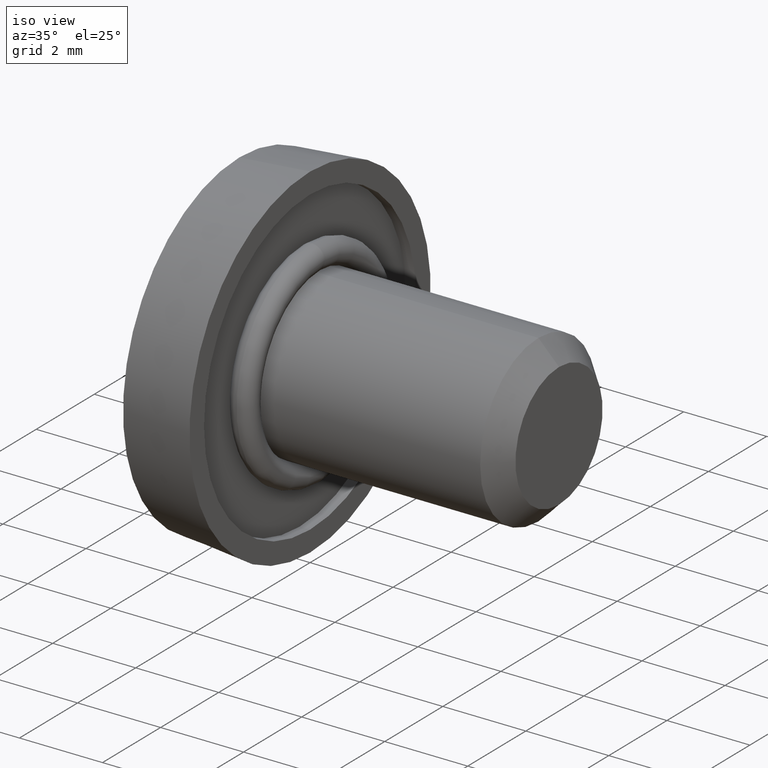
[diagram: clean part render]
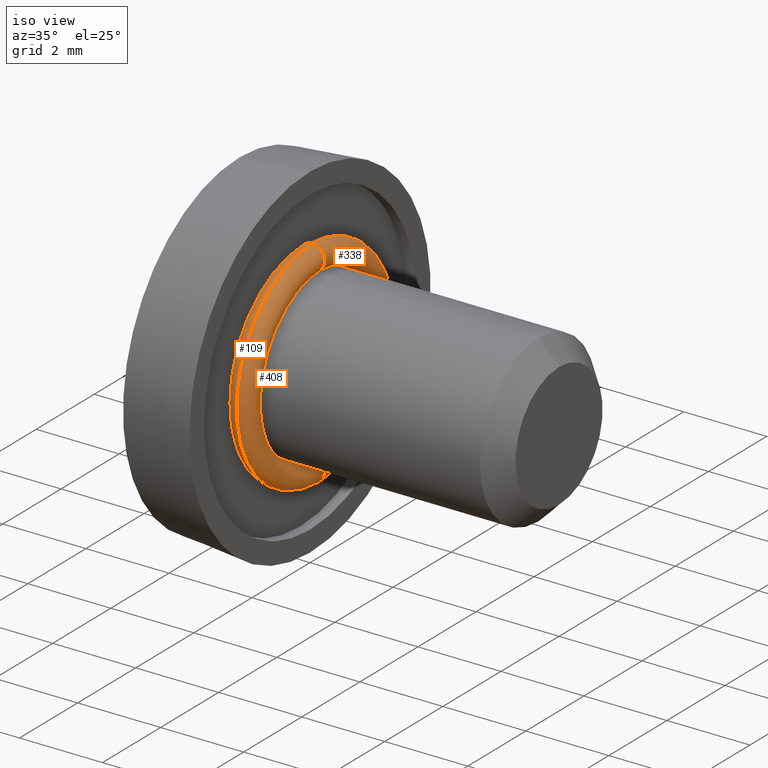
[diagram: same view with one multi-face feature highlighted, each face labeled with its STEP entity id]
A machine part, iso view. The highlighted faces form ONE feature: a constant-radius fillet chain: 3 tangent blend faces with common blend radius 0.3 mm. The faces share edges in the B-rep.
Their STEP definitions:
[1] entity #109 (Torus):
#3 = TOROIDAL_SURFACE ( 'NONE', #110, 2.299999999999999800, 0.2999999999999998800 ) ;
#40 = CARTESIAN_POINT ( 'NONE',  ( 0.04999999999999998900, 2.449293598294706400E-016, 2.000000000000000000 ) ) ;
#53 = ORIENTED_EDGE ( 'NONE', *, *, #672, .T. ) ;
#76 = DIRECTION ( 'NONE',  ( 0.0000000000000000000, 0.0000000000000000000, -1.000000000000000000 ) ) ;
#95 = VERTEX_POINT ( 'NONE', #429 ) ;
#109 = ADVANCED_FACE ( 'NONE', ( #701 ), #3, .T. ) ;
#110 = AXIS2_PLACEMENT_3D ( 'NONE', #570, #786, #76 ) ;
#134 = ORIENTED_EDGE ( 'NONE', *, *, #1192, .F. ) ;
#135 = DIRECTION ( 'NONE',  ( 0.0000000000000000000, 0.0000000000000000000, -1.000000000000000000 ) ) ;
#150 = DIRECTION ( 'NONE',  ( 1.000000000000000000, -0.0000000000000000000, -0.0000000000000000000 ) ) ;
#155 = DIRECTION ( 'NONE',  ( 0.0000000000000000000, 1.224646799147353200E-016, 1.000000000000000000 ) ) ;
#158 = CIRCLE ( 'NONE', #720, 2.600000000000000100 ) ;
#259 = CARTESIAN_POINT ( 'NONE',  ( 0.05000000000000002400, 0.0000000000000000000, 0.0000000000000000000 ) ) ;
#275 = CIRCLE ( 'NONE', #340, 2.000000000000000000 ) ;
#336 = CIRCLE ( 'NONE', #1205, 0.2999999999999999300 ) ;
#340 = AXIS2_PLACEMENT_3D ( 'NONE', #1015, #713, #135 ) ;
#385 = DIRECTION ( 'NONE',  ( 0.0000000000000000000, 1.000000000000000000, -1.224646799147353200E-016 ) ) ;
#429 = CARTESIAN_POINT ( 'NONE',  ( 0.04999999999999998900, 0.0000000000000000000, -2.000000000000000000 ) ) ;
#451 = ORIENTED_EDGE ( 'NONE', *, *, #1131, .F. ) ;
#504 = VERTEX_POINT ( 'NONE', #721 ) ;
#546 = CARTESIAN_POINT ( 'NONE',  ( 0.05000000000000002400, 0.0000000000000000000, -2.299999999999999800 ) ) ;
#570 = CARTESIAN_POINT ( 'NONE',  ( 0.05000000000000002400, 0.0000000000000000000, 0.0000000000000000000 ) ) ;
#577 = EDGE_CURVE ( 'NONE', #95, #504, #336, .T. ) ;
#631 = CARTESIAN_POINT ( 'NONE',  ( 0.05000000000000002400, 3.184081677783118200E-016, 2.600000000000000100 ) ) ;
#672 = EDGE_CURVE ( 'NONE', #840, #95, #275, .T. ) ;
#674 = DIRECTION ( 'NONE',  ( 0.0000000000000000000, 0.0000000000000000000, -1.000000000000000000 ) ) ;
#681 = CARTESIAN_POINT ( 'NONE',  ( 0.05000000000000002400, 2.816687638038912100E-016, 2.299999999999999800 ) ) ;
#701 = FACE_OUTER_BOUND ( 'NONE', #797, .T. ) ;
#713 = DIRECTION ( 'NONE',  ( 1.000000000000000000, -0.0000000000000000000, -0.0000000000000000000 ) ) ;
#720 = AXIS2_PLACEMENT_3D ( 'NONE', #259, #150, #977 ) ;
#721 = CARTESIAN_POINT ( 'NONE',  ( 0.05000000000000002400, 0.0000000000000000000, -2.600000000000000100 ) ) ;
#786 = DIRECTION ( 'NONE',  ( 1.000000000000000000, -0.0000000000000000000, -0.0000000000000000000 ) ) ;
#797 = EDGE_LOOP ( 'NONE', ( #451, #134, #53, #1195 ) ) ;
#840 = VERTEX_POINT ( 'NONE', #40 ) ;
#919 = AXIS2_PLACEMENT_3D ( 'NONE', #681, #385, #155 ) ;
#939 = DIRECTION ( 'NONE',  ( -0.0000000000000000000, -1.000000000000000000, -0.0000000000000000000 ) ) ;
#955 = VERTEX_POINT ( 'NONE', #631 ) ;
#977 = DIRECTION ( 'NONE',  ( 0.0000000000000000000, 0.0000000000000000000, -1.000000000000000000 ) ) ;
#1015 = CARTESIAN_POINT ( 'NONE',  ( 0.04999999999999998900, 0.0000000000000000000, 0.0000000000000000000 ) ) ;
#1112 = CIRCLE ( 'NONE', #919, 0.2999999999999999300 ) ;
#1131 = EDGE_CURVE ( 'NONE', #955, #504, #158, .T. ) ;
#1192 = EDGE_CURVE ( 'NONE', #840, #955, #1112, .T. ) ;
#1195 = ORIENTED_EDGE ( 'NONE', *, *, #577, .T. ) ;
#1205 = AXIS2_PLACEMENT_3D ( 'NONE', #546, #939, #674 ) ;
[2] entity #408 (Torus):
#9 = ORIENTED_EDGE ( 'NONE', *, *, #876, .T. ) ;
#40 = CARTESIAN_POINT ( 'NONE',  ( 0.04999999999999998900, 2.449293598294706400E-016, 2.000000000000000000 ) ) ;
#58 = FACE_OUTER_BOUND ( 'NONE', #213, .T. ) ;
#95 = VERTEX_POINT ( 'NONE', #429 ) ;
#133 = ORIENTED_EDGE ( 'NONE', *, *, #672, .F. ) ;
#135 = DIRECTION ( 'NONE',  ( 0.0000000000000000000, 0.0000000000000000000, -1.000000000000000000 ) ) ;
#150 = DIRECTION ( 'NONE',  ( 1.000000000000000000, -0.0000000000000000000, -0.0000000000000000000 ) ) ;
#158 = CIRCLE ( 'NONE', #720, 2.600000000000000100 ) ;
#213 = EDGE_LOOP ( 'NONE', ( #1049, #608, #9, #133 ) ) ;
#235 = CIRCLE ( 'NONE', #375, 0.2999999999999999300 ) ;
#253 = CARTESIAN_POINT ( 'NONE',  ( 0.05000000000000002400, 0.0000000000000000000, -2.299999999999999800 ) ) ;
#259 = CARTESIAN_POINT ( 'NONE',  ( 0.05000000000000002400, 0.0000000000000000000, 0.0000000000000000000 ) ) ;
#275 = CIRCLE ( 'NONE', #340, 2.000000000000000000 ) ;
#331 = CARTESIAN_POINT ( 'NONE',  ( 0.05000000000000002400, 0.0000000000000000000, 0.0000000000000000000 ) ) ;
#340 = AXIS2_PLACEMENT_3D ( 'NONE', #1015, #713, #135 ) ;
#375 = AXIS2_PLACEMENT_3D ( 'NONE', #1155, #1102, #1036 ) ;
#408 = ADVANCED_FACE ( 'NONE', ( #58 ), #792, .T. ) ;
#429 = CARTESIAN_POINT ( 'NONE',  ( 0.04999999999999998900, 0.0000000000000000000, -2.000000000000000000 ) ) ;
#445 = DIRECTION ( 'NONE',  ( 0.0000000000000000000, 0.0000000000000000000, -1.000000000000000000 ) ) ;
#504 = VERTEX_POINT ( 'NONE', #721 ) ;
#527 = DIRECTION ( 'NONE',  ( 0.0000000000000000000, 0.0000000000000000000, -1.000000000000000000 ) ) ;
#608 = ORIENTED_EDGE ( 'NONE', *, *, #1131, .T. ) ;
#631 = CARTESIAN_POINT ( 'NONE',  ( 0.05000000000000002400, 3.184081677783118200E-016, 2.600000000000000100 ) ) ;
#672 = EDGE_CURVE ( 'NONE', #840, #95, #275, .T. ) ;
#713 = DIRECTION ( 'NONE',  ( 1.000000000000000000, -0.0000000000000000000, -0.0000000000000000000 ) ) ;
#720 = AXIS2_PLACEMENT_3D ( 'NONE', #259, #150, #977 ) ;
#721 = CARTESIAN_POINT ( 'NONE',  ( 0.05000000000000002400, 0.0000000000000000000, -2.600000000000000100 ) ) ;
#724 = AXIS2_PLACEMENT_3D ( 'NONE', #331, #1087, #445 ) ;
#792 = TOROIDAL_SURFACE ( 'NONE', #724, 2.299999999999999800, 0.2999999999999998800 ) ;
#840 = VERTEX_POINT ( 'NONE', #40 ) ;
#876 = EDGE_CURVE ( 'NONE', #504, #95, #1186, .T. ) ;
#955 = VERTEX_POINT ( 'NONE', #631 ) ;
#977 = DIRECTION ( 'NONE',  ( 0.0000000000000000000, 0.0000000000000000000, -1.000000000000000000 ) ) ;
#1001 = AXIS2_PLACEMENT_3D ( 'NONE', #253, #1109, #527 ) ;
#1015 = CARTESIAN_POINT ( 'NONE',  ( 0.04999999999999998900, 0.0000000000000000000, 0.0000000000000000000 ) ) ;
#1036 = DIRECTION ( 'NONE',  ( 0.0000000000000000000, 1.224646799147353200E-016, 1.000000000000000000 ) ) ;
#1047 = EDGE_CURVE ( 'NONE', #955, #840, #235, .T. ) ;
#1049 = ORIENTED_EDGE ( 'NONE', *, *, #1047, .F. ) ;
#1087 = DIRECTION ( 'NONE',  ( 1.000000000000000000, -0.0000000000000000000, -0.0000000000000000000 ) ) ;
#1102 = DIRECTION ( 'NONE',  ( 0.0000000000000000000, 1.000000000000000000, -1.224646799147353200E-016 ) ) ;
#1109 = DIRECTION ( 'NONE',  ( -0.0000000000000000000, -1.000000000000000000, -0.0000000000000000000 ) ) ;
#1131 = EDGE_CURVE ( 'NONE', #955, #504, #158, .T. ) ;
#1155 = CARTESIAN_POINT ( 'NONE',  ( 0.05000000000000002400, 2.816687638038912100E-016, 2.299999999999999800 ) ) ;
#1186 = CIRCLE ( 'NONE', #1001, 0.2999999999999999300 ) ;
[3] entity #338 (Torus):
#40 = CARTESIAN_POINT ( 'NONE',  ( 0.04999999999999998900, 2.449293598294706400E-016, 2.000000000000000000 ) ) ;
#95 = VERTEX_POINT ( 'NONE', #429 ) ;
#105 = AXIS2_PLACEMENT_3D ( 'NONE', #1221, #464, #929 ) ;
#146 = FACE_OUTER_BOUND ( 'NONE', #729, .T. ) ;
#169 = DIRECTION ( 'NONE',  ( 1.000000000000000000, -0.0000000000000000000, -0.0000000000000000000 ) ) ;
#196 = AXIS2_PLACEMENT_3D ( 'NONE', #359, #1124, #1132 ) ;
#198 = ORIENTED_EDGE ( 'NONE', *, *, #454, .T. ) ;
#206 = CIRCLE ( 'NONE', #1041, 2.600000000000000100 ) ;
#212 = ORIENTED_EDGE ( 'NONE', *, *, #614, .F. ) ;
#235 = CIRCLE ( 'NONE', #375, 0.2999999999999999300 ) ;
#253 = CARTESIAN_POINT ( 'NONE',  ( 0.05000000000000002400, 0.0000000000000000000, -2.299999999999999800 ) ) ;
#304 = CIRCLE ( 'NONE', #105, 2.000000000000000000 ) ;
#338 = ADVANCED_FACE ( 'NONE', ( #146 ), #888, .T. ) ;
#349 = ORIENTED_EDGE ( 'NONE', *, *, #876, .F. ) ;
#359 = CARTESIAN_POINT ( 'NONE',  ( 0.05000000000000002400, 0.0000000000000000000, 0.0000000000000000000 ) ) ;
#375 = AXIS2_PLACEMENT_3D ( 'NONE', #1155, #1102, #1036 ) ;
#389 = CARTESIAN_POINT ( 'NONE',  ( 0.05000000000000002400, 0.0000000000000000000, 0.0000000000000000000 ) ) ;
#429 = CARTESIAN_POINT ( 'NONE',  ( 0.04999999999999998900, 0.0000000000000000000, -2.000000000000000000 ) ) ;
#454 = EDGE_CURVE ( 'NONE', #504, #955, #206, .T. ) ;
#464 = DIRECTION ( 'NONE',  ( 1.000000000000000000, -0.0000000000000000000, -0.0000000000000000000 ) ) ;
#504 = VERTEX_POINT ( 'NONE', #721 ) ;
#527 = DIRECTION ( 'NONE',  ( 0.0000000000000000000, 0.0000000000000000000, -1.000000000000000000 ) ) ;
#614 = EDGE_CURVE ( 'NONE', #95, #840, #304, .T. ) ;
#631 = CARTESIAN_POINT ( 'NONE',  ( 0.05000000000000002400, 3.184081677783118200E-016, 2.600000000000000100 ) ) ;
#692 = DIRECTION ( 'NONE',  ( 0.0000000000000000000, 0.0000000000000000000, -1.000000000000000000 ) ) ;
#721 = CARTESIAN_POINT ( 'NONE',  ( 0.05000000000000002400, 0.0000000000000000000, -2.600000000000000100 ) ) ;
#729 = EDGE_LOOP ( 'NONE', ( #349, #198, #1207, #212 ) ) ;
#840 = VERTEX_POINT ( 'NONE', #40 ) ;
#876 = EDGE_CURVE ( 'NONE', #504, #95, #1186, .T. ) ;
#888 = TOROIDAL_SURFACE ( 'NONE', #196, 2.299999999999999800, 0.2999999999999998800 ) ;
#929 = DIRECTION ( 'NONE',  ( 0.0000000000000000000, 0.0000000000000000000, -1.000000000000000000 ) ) ;
#955 = VERTEX_POINT ( 'NONE', #631 ) ;
#1001 = AXIS2_PLACEMENT_3D ( 'NONE', #253, #1109, #527 ) ;
#1036 = DIRECTION ( 'NONE',  ( 0.0000000000000000000, 1.224646799147353200E-016, 1.000000000000000000 ) ) ;
#1041 = AXIS2_PLACEMENT_3D ( 'NONE', #389, #169, #692 ) ;
#1047 = EDGE_CURVE ( 'NONE', #955, #840, #235, .T. ) ;
#1102 = DIRECTION ( 'NONE',  ( 0.0000000000000000000, 1.000000000000000000, -1.224646799147353200E-016 ) ) ;
#1109 = DIRECTION ( 'NONE',  ( -0.0000000000000000000, -1.000000000000000000, -0.0000000000000000000 ) ) ;
#1124 = DIRECTION ( 'NONE',  ( 1.000000000000000000, -0.0000000000000000000, -0.0000000000000000000 ) ) ;
#1132 = DIRECTION ( 'NONE',  ( 0.0000000000000000000, 0.0000000000000000000, -1.000000000000000000 ) ) ;
#1155 = CARTESIAN_POINT ( 'NONE',  ( 0.05000000000000002400, 2.816687638038912100E-016, 2.299999999999999800 ) ) ;
#1186 = CIRCLE ( 'NONE', #1001, 0.2999999999999999300 ) ;
#1207 = ORIENTED_EDGE ( 'NONE', *, *, #1047, .T. ) ;
#1221 = CARTESIAN_POINT ( 'NONE',  ( 0.04999999999999998900, 0.0000000000000000000, 0.0000000000000000000 ) ) ;